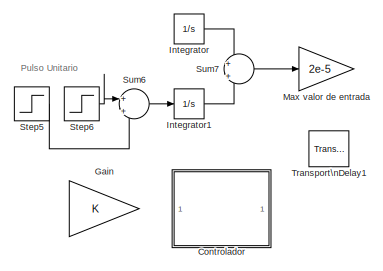
[diagram: root canvas - part 1/2, top right region]
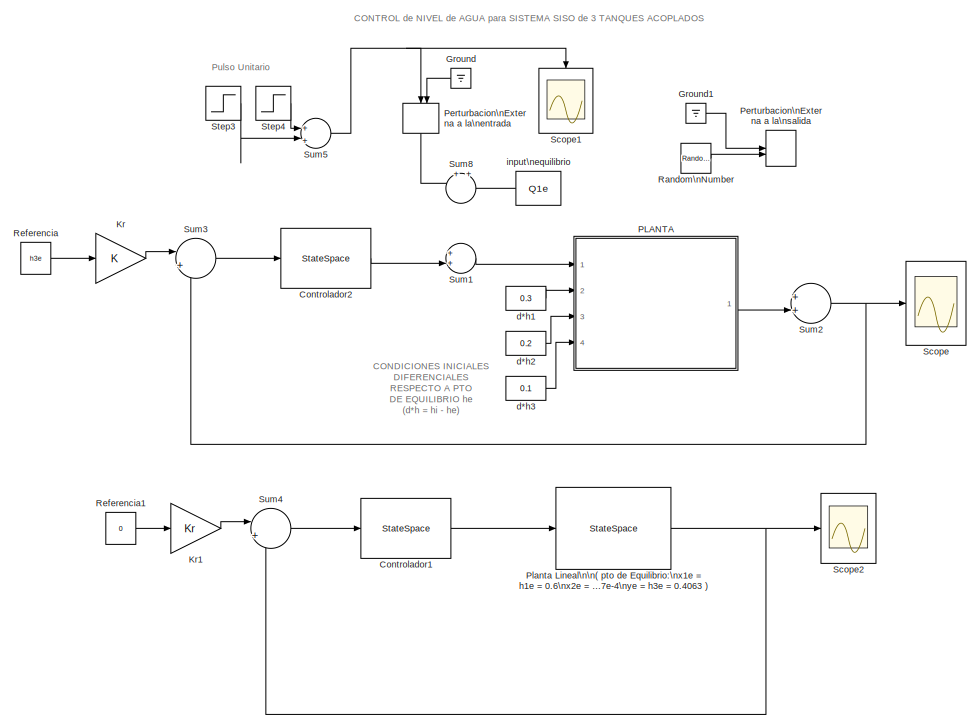
[diagram: root canvas - part 2/2, left side, full height]
MODEL sys3Tanks_v3
KIND model
BLOCK [Constant]  input\nequilibrio
  SID = 208
  Value = Q1e
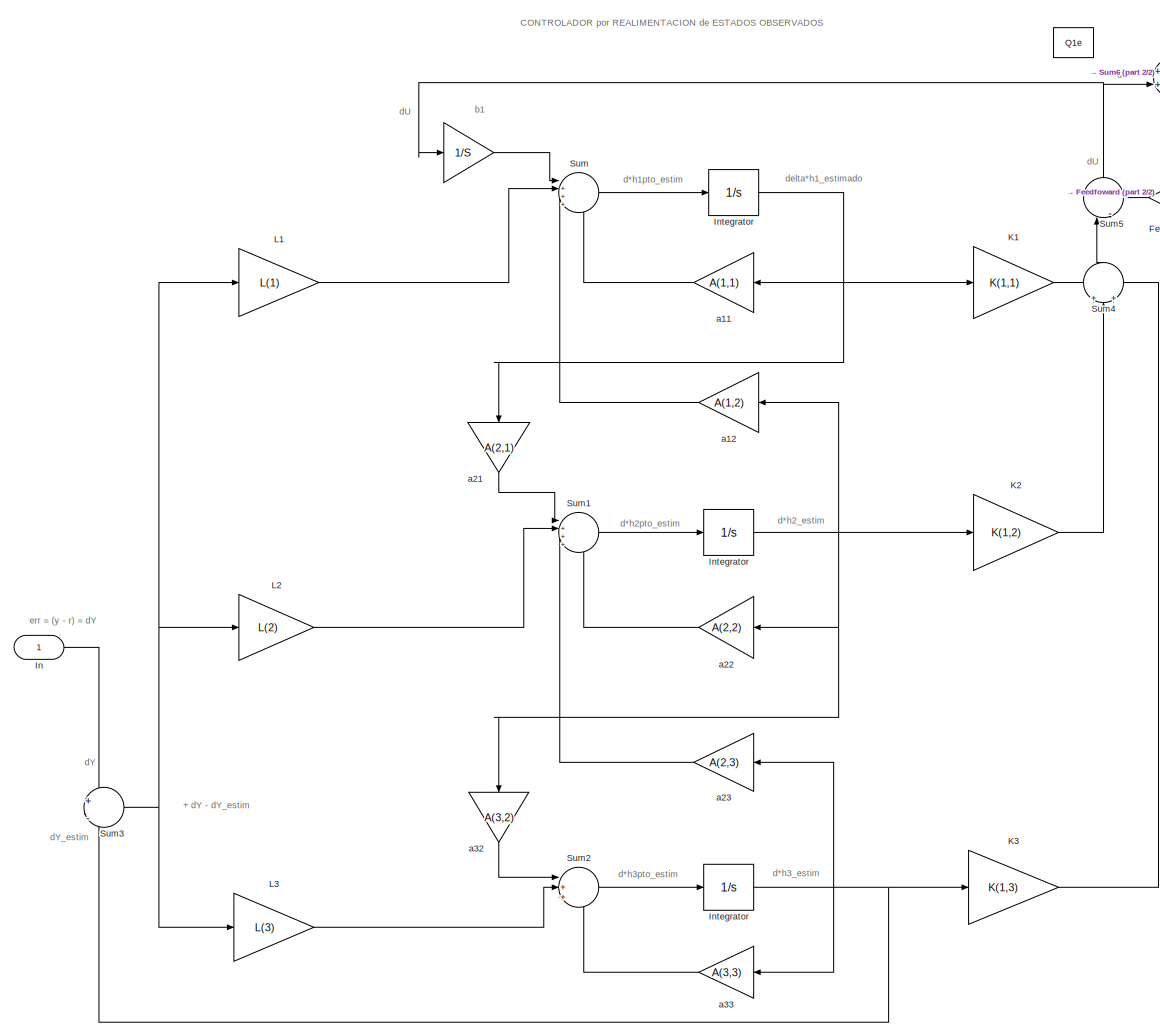
[diagram: Controlador - part 1/2, most of the canvas]
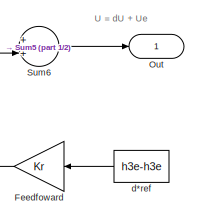
[diagram: Controlador - part 2/2, top right region]
BLOCK [SubSystem] Controlador
  Ports = [1, 1]
  RequestExecContextInheritance = off
  SID = 36
  TreatAsAtomicUnit = on
BLOCK [Constant] Controlador/ 
  SID = 104
  Value = Q1e
BLOCK [Gain] Controlador/   
  Gain = 1/S
  OutDataTypeStr = Inherit: Inherit via internal rule
  ParamDataTypeStr = Inherit: Inherit via internal rule
  SID = 73
  SaturateOnIntegerOverflow = off
BLOCK [Integrator] Controlador/ Integrator 
  Ports = [1, 1]
  SID = 77
BLOCK [Gain] Controlador/Feedfoward
  Gain = Kr
  OutDataTypeStr = Inherit: Inherit via internal rule
  ParamDataTypeStr = Inherit: Inherit via internal rule
  SID = 81
  SaturateOnIntegerOverflow = off
BLOCK [Inport] Controlador/In
  IconDisplay = Port number
  SID = 37
BLOCK [Integrator] Controlador/Integrator
  Ports = [1, 1]
  SID = 75
BLOCK [Integrator] Controlador/Integrator  
  Ports = [1, 1]
  SID = 76
BLOCK [Gain] Controlador/K1
  Gain = K(1,1)
  OutDataTypeStr = Inherit: Inherit via internal rule
  ParamDataTypeStr = Inherit: Inherit via internal rule
  SID = 78
  SaturateOnIntegerOverflow = off
BLOCK [Gain] Controlador/K2
  Gain = K(1,2)
  OutDataTypeStr = Inherit: Inherit via internal rule
  ParamDataTypeStr = Inherit: Inherit via internal rule
  SID = 79
  SaturateOnIntegerOverflow = off
BLOCK [Gain] Controlador/K3
  Gain = K(1,3)
  OutDataTypeStr = Inherit: Inherit via internal rule
  ParamDataTypeStr = Inherit: Inherit via internal rule
  SID = 80
  SaturateOnIntegerOverflow = off
BLOCK [Gain] Controlador/L1
  Gain = L(1)
  OutDataTypeStr = Inherit: Inherit via internal rule
  ParamDataTypeStr = Inherit: Inherit via internal rule
  SID = 82
  SaturateOnIntegerOverflow = off
BLOCK [Gain] Controlador/L2
  Gain = L(2)
  OutDataTypeStr = Inherit: Inherit via internal rule
  ParamDataTypeStr = Inherit: Inherit via internal rule
  SID = 83
  SaturateOnIntegerOverflow = off
BLOCK [Gain] Controlador/L3
  Gain = L(3)
  OutDataTypeStr = Inherit: Inherit via internal rule
  ParamDataTypeStr = Inherit: Inherit via internal rule
  SID = 84
  SaturateOnIntegerOverflow = off
BLOCK [Outport] Controlador/Out
  IconDisplay = Port number
  SID = 65
BLOCK [Sum] Controlador/Sum
  IconShape = round
  InputSameDT = off
  Inputs = |++++
  OutDataTypeStr = Inherit: Inherit via internal rule
  Ports = [4, 1]
  SID = 85
  SaturateOnIntegerOverflow = off
BLOCK [Sum] Controlador/Sum1
  IconShape = round
  InputSameDT = off
  Inputs = |++++
  OutDataTypeStr = Inherit: Inherit via internal rule
  Ports = [4, 1]
  SID = 86
  SaturateOnIntegerOverflow = off
BLOCK [Sum] Controlador/Sum2
  IconShape = round
  InputSameDT = off
  Inputs = |+++
  OutDataTypeStr = Inherit: Inherit via internal rule
  Ports = [3, 1]
  SID = 87
  SaturateOnIntegerOverflow = off
BLOCK [Sum] Controlador/Sum3
  IconShape = round
  InputSameDT = off
  Inputs = +|-
  OutDataTypeStr = Inherit: Inherit via internal rule
  Ports = [2, 1]
  SID = 88
  SaturateOnIntegerOverflow = off
BLOCK [Sum] Controlador/Sum4
  IconShape = round
  InputSameDT = off
  Inputs = +|+|+
  OutDataTypeStr = Inherit: Inherit via internal rule
  Ports = [3, 1]
  SID = 89
  SaturateOnIntegerOverflow = off
BLOCK [Sum] Controlador/Sum5
  IconShape = round
  InputSameDT = off
  Inputs = |-+
  OutDataTypeStr = Inherit: Inherit via internal rule
  Ports = [2, 1]
  SID = 98
  SaturateOnIntegerOverflow = off
BLOCK [Sum] Controlador/Sum6
  IconShape = round
  InputSameDT = off
  Inputs = ++|
  OutDataTypeStr = Inherit: Inherit via internal rule
  Ports = [2, 1]
  SID = 103
  SaturateOnIntegerOverflow = off
BLOCK [Gain] Controlador/a11
  Gain = A(1,1)
  OutDataTypeStr = Inherit: Inherit via internal rule
  ParamDataTypeStr = Inherit: Inherit via internal rule
  SID = 90
  SaturateOnIntegerOverflow = off
BLOCK [Gain] Controlador/a12
  Gain = A(1,2)
  OutDataTypeStr = Inherit: Inherit via internal rule
  ParamDataTypeStr = Inherit: Inherit via internal rule
  SID = 91
  SaturateOnIntegerOverflow = off
BLOCK [Gain] Controlador/a21
  Gain = A(2,1)
  OutDataTypeStr = Inherit: Inherit via internal rule
  ParamDataTypeStr = Inherit: Inherit via internal rule
  SID = 92
  SaturateOnIntegerOverflow = off
BLOCK [Gain] Controlador/a22
  Gain = A(2,2)
  OutDataTypeStr = Inherit: Inherit via internal rule
  ParamDataTypeStr = Inherit: Inherit via internal rule
  SID = 93
  SaturateOnIntegerOverflow = off
BLOCK [Gain] Controlador/a23
  Gain = A(2,3)
  OutDataTypeStr = Inherit: Inherit via internal rule
  ParamDataTypeStr = Inherit: Inherit via internal rule
  SID = 94
  SaturateOnIntegerOverflow = off
BLOCK [Gain] Controlador/a32
  Gain = A(3,2)
  OutDataTypeStr = Inherit: Inherit via internal rule
  ParamDataTypeStr = Inherit: Inherit via internal rule
  SID = 95
  SaturateOnIntegerOverflow = off
BLOCK [Gain] Controlador/a33
  Gain = A(3,3)
  OutDataTypeStr = Inherit: Inherit via internal rule
  ParamDataTypeStr = Inherit: Inherit via internal rule
  SID = 96
  SaturateOnIntegerOverflow = off
BLOCK [Constant] Controlador/d*ref  
  SID = 100
  Value = h3e-h3e
BLOCK [StateSpace] Controlador1
  A = Ac
  B = Bc
  C = Cc
  D = Dc
  Ports = [1, 1]
  SID = 199
  X0 = [0;0;0]
BLOCK [StateSpace] Controlador2
  A = Ac
  B = Bc
  C = Cc
  D = Dc
  Ports = [1, 1]
  SID = 211
  X0 = [0;0;0]
BLOCK [Gain] Gain
  OutDataTypeStr = Inherit: Inherit via internal rule
  ParamDataTypeStr = Inherit: Inherit via internal rule
  SID = 197
  SaturateOnIntegerOverflow = off
BLOCK [Ground] Ground
  SID = 145
BLOCK [Ground] Ground1
  SID = 146
BLOCK [Integrator] Integrator
  Ports = [1, 1]
  SID = 187
BLOCK [Integrator] Integrator1
  Ports = [1, 1]
  SID = 188
BLOCK [Gain] Kr
  OutDataTypeStr = Inherit: Inherit via internal rule
  ParamDataTypeStr = Inherit: Inherit via internal rule
  SID = 206
  SaturateOnIntegerOverflow = off
BLOCK [Gain] Kr1
  Gain = Kr
  OutDataTypeStr = Inherit: Inherit via internal rule
  ParamDataTypeStr = Inherit: Inherit via internal rule
  SID = 207
  SaturateOnIntegerOverflow = off
BLOCK [Gain] Max valor de entrada
  Gain = 2e-5
  OutDataTypeStr = Inherit: Inherit via internal rule
  ParamDataTypeStr = Inherit: Inherit via internal rule
  SID = 173
  SaturateOnIntegerOverflow = off
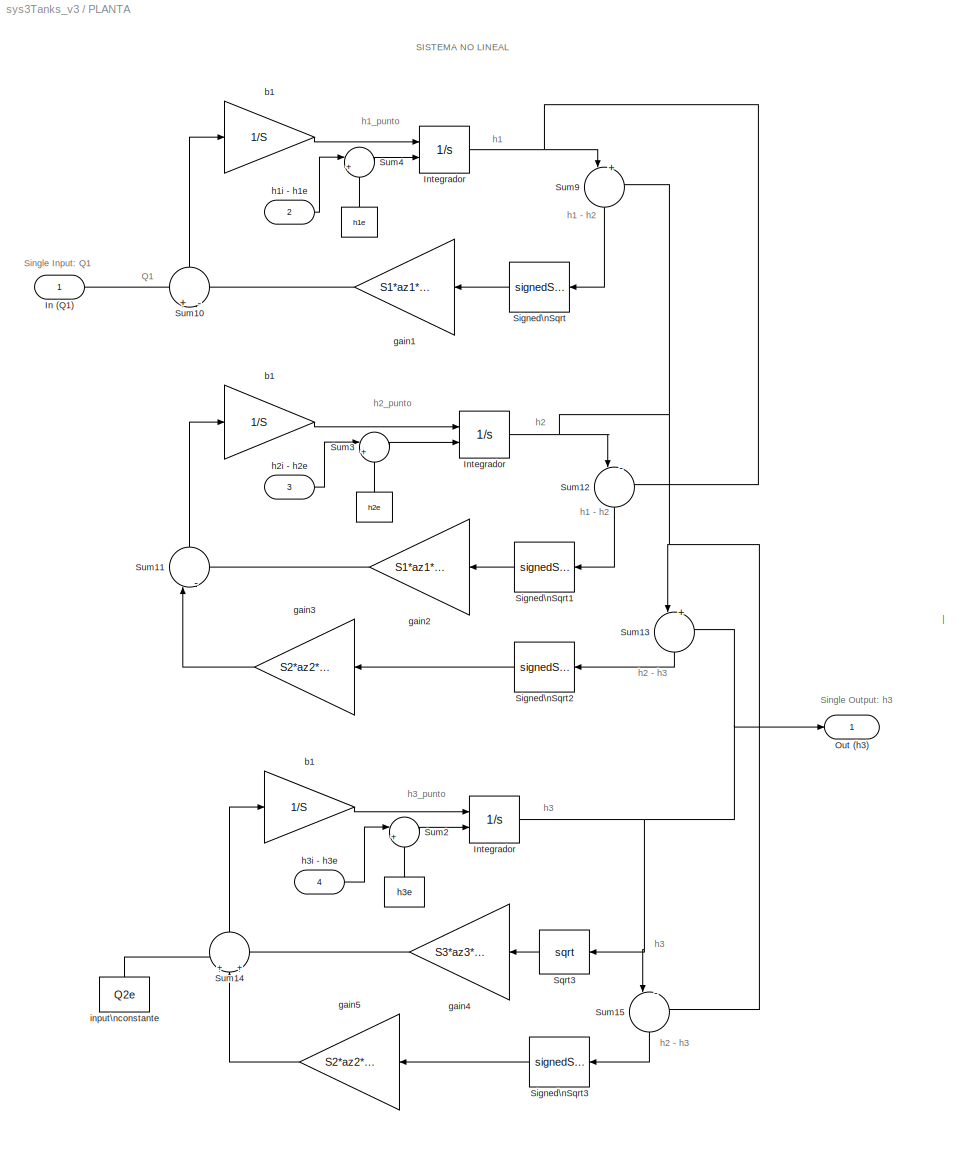
BLOCK [SubSystem] PLANTA
  Ports = [4, 1]
  RequestExecContextInheritance = off
  SID = 1
  TreatAsAtomicUnit = on
BLOCK [Constant] PLANTA/ 
  SID = 138
  Value = h1e
BLOCK [Constant] PLANTA/   
  SID = 34
  Value = h2e
BLOCK [Constant] PLANTA/     
  SID = 35
  Value = h3e
BLOCK [Integrator] PLANTA/ Integrador  
  AbsoluteTolerance = 1
  InitialCondition = 0.406
  InitialConditionSource = external
  LimitOutput = on
  LowerSaturationLimit = 0
  Ports = [2, 1]
  SID = 12
  UpperSaturationLimit = 1e2
BLOCK [Gain] PLANTA/ b1 
  Gain = 1/S
  OutDataTypeStr = Inherit: Inherit via internal rule
  ParamDataTypeStr = Inherit: Inherit via internal rule
  SID = 9
  SaturateOnIntegerOverflow = off
BLOCK [Constant] PLANTA/ input\nconstante
  SID = 14
  Value = Q2e
BLOCK [Inport] PLANTA/In (Q1)
  IconDisplay = Port number
  SID = 2
BLOCK [Integrator] PLANTA/Integrador
  InitialCondition = 0.5
  InitialConditionSource = external
  Ports = [2, 1]
  SID = 11
BLOCK [Integrator] PLANTA/Integrador 
  InitialCondition = 0.6
  InitialConditionSource = external
  Ports = [2, 1]
  SID = 10
BLOCK [Outport] PLANTA/Out (h3)
  IconDisplay = Port number
  SID = 3
BLOCK [Sqrt] PLANTA/Signed\nSqrt
  Operator = signedSqrt
  SID = 20
BLOCK [Sqrt] PLANTA/Signed\nSqrt1
  Operator = signedSqrt
  SID = 21
BLOCK [Sqrt] PLANTA/Signed\nSqrt2
  Operator = signedSqrt
  SID = 22
BLOCK [Sqrt] PLANTA/Signed\nSqrt3
  Operator = signedSqrt
  SID = 23
BLOCK [Sqrt] PLANTA/Sqrt3
  OutputSignalType = real
  SID = 24
BLOCK [Sum] PLANTA/Sum10
  IconShape = round
  InputSameDT = off
  Inputs = +|-
  OutDataTypeStr = Inherit: Inherit via internal rule
  Ports = [2, 1]
  SID = 25
  SaturateOnIntegerOverflow = off
BLOCK [Sum] PLANTA/Sum11
  IconShape = round
  InputSameDT = off
  Inputs = |-+
  OutDataTypeStr = Inherit: Inherit via internal rule
  Ports = [2, 1]
  SID = 26
  SaturateOnIntegerOverflow = off
BLOCK [Sum] PLANTA/Sum12
  IconShape = round
  InputSameDT = off
  Inputs = |-+
  OutDataTypeStr = Inherit: Inherit via internal rule
  Ports = [2, 1]
  SID = 27
  SaturateOnIntegerOverflow = off
BLOCK [Sum] PLANTA/Sum13
  IconShape = round
  InputSameDT = off
  Inputs = |+-
  OutDataTypeStr = Inherit: Inherit via internal rule
  Ports = [2, 1]
  SID = 28
  SaturateOnIntegerOverflow = off
BLOCK [Sum] PLANTA/Sum14
  IconShape = round
  InputSameDT = off
  Inputs = +|+|-
  OutDataTypeStr = Inherit: Inherit via internal rule
  Ports = [3, 1]
  SID = 29
  SaturateOnIntegerOverflow = off
BLOCK [Sum] PLANTA/Sum15
  IconShape = round
  InputSameDT = off
  Inputs = |-+
  OutDataTypeStr = Inherit: Inherit via internal rule
  Ports = [2, 1]
  SID = 30
  SaturateOnIntegerOverflow = off
BLOCK [Sum] PLANTA/Sum2
  IconShape = round
  InputSameDT = off
  Inputs = |++
  OutDataTypeStr = Inherit: Inherit via internal rule
  Ports = [2, 1]
  SID = 130
  SaturateOnIntegerOverflow = off
BLOCK [Sum] PLANTA/Sum3
  IconShape = round
  InputSameDT = off
  Inputs = |++
  OutDataTypeStr = Inherit: Inherit via internal rule
  Ports = [2, 1]
  SID = 134
  SaturateOnIntegerOverflow = off
BLOCK [Sum] PLANTA/Sum4
  IconShape = round
  InputSameDT = off
  Inputs = |++
  OutDataTypeStr = Inherit: Inherit via internal rule
  Ports = [2, 1]
  SID = 137
  SaturateOnIntegerOverflow = off
BLOCK [Sum] PLANTA/Sum9
  IconShape = round
  InputSameDT = off
  Inputs = |+-
  OutDataTypeStr = Inherit: Inherit via internal rule
  Ports = [2, 1]
  SID = 32
  SaturateOnIntegerOverflow = off
BLOCK [Gain] PLANTA/b1
  Gain = 1/S
  OutDataTypeStr = Inherit: Inherit via internal rule
  ParamDataTypeStr = Inherit: Inherit via internal rule
  SID = 7
  SaturateOnIntegerOverflow = off
BLOCK [Gain] PLANTA/b1   
  Gain = 1/S
  OutDataTypeStr = Inherit: Inherit via internal rule
  ParamDataTypeStr = Inherit: Inherit via internal rule
  SID = 8
  SaturateOnIntegerOverflow = off
BLOCK [Gain] PLANTA/gain1
  Gain = S1*az1*sqrt(2*g)
  OutDataTypeStr = Inherit: Inherit via internal rule
  ParamDataTypeStr = Inherit: Inherit via internal rule
  SID = 15
  SaturateOnIntegerOverflow = off
BLOCK [Gain] PLANTA/gain2
  Gain = S1*az1*sqrt(2*g)
  OutDataTypeStr = Inherit: Inherit via internal rule
  ParamDataTypeStr = Inherit: Inherit via internal rule
  SID = 16
  SaturateOnIntegerOverflow = off
BLOCK [Gain] PLANTA/gain3
  Gain = S2*az2*sqrt(2*g)
  OutDataTypeStr = Inherit: Inherit via internal rule
  ParamDataTypeStr = Inherit: Inherit via internal rule
  SID = 17
  SaturateOnIntegerOverflow = off
BLOCK [Gain] PLANTA/gain4
  Gain = S3*az3*sqrt(2*g)
  OutDataTypeStr = Inherit: Inherit via internal rule
  ParamDataTypeStr = Inherit: Inherit via internal rule
  SID = 19
  SaturateOnIntegerOverflow = off
BLOCK [Gain] PLANTA/gain5
  Gain = S2*az2*sqrt(2*g)
  OutDataTypeStr = Inherit: Inherit via internal rule
  ParamDataTypeStr = Inherit: Inherit via internal rule
  SID = 18
  SaturateOnIntegerOverflow = off
BLOCK [Inport] PLANTA/h1i - h1e
  IconDisplay = Port number
  Port = 2
  SID = 135
BLOCK [Inport] PLANTA/h2i - h2e
  IconDisplay = Port number
  Port = 3
  SID = 133
BLOCK [Inport] PLANTA/h3i - h3e
  IconDisplay = Port number
  Port = 4
  SID = 132
BLOCK [ManualSwitch] Perturbacion\nExterna a la\nentrada
  CurrentSetting = 0
  SID = 118
BLOCK [ManualSwitch] Perturbacion\nExterna a la\nsalida
  SID = 117
BLOCK [StateSpace] Planta Lineal\n\n( pto de Equilibrio:\nx1e = h1e = 0.6\nx2e = h2e = 0.5\nx3e = h3e = 0.4063\nue = Q1e = 0.35787e-4\nye = h3e = 0.4063 )
  A = A
  B = B
  C = C
  D = D
  Ports = [1, 1]
  SID = 200
  X0 = [1.2; 0.9; 0.1]
BLOCK [RandomNumber] Random\nNumber
  SID = 196
  Variance = 1e-6
BLOCK [Constant] Referencia
  SID = 102
  Value = h3e
BLOCK [Constant] Referencia1
  SID = 201
  Value = 0
BLOCK [Scope] Scope
  DataFormat = StructureWithTime
  Floating = off
  LimitDataPoints = off
  NumInputPorts = 1
  Ports = [1]
  SID = 106
  SampleTime = 0
  TimeRange = 14.3
  YMax = 0.775
  YMin = 0.5
  ZoomMode = yonly
BLOCK [Scope] Scope1
  DataFormat = StructureWithTime
  Floating = off
  LimitDataPoints = off
  NumInputPorts = 1
  Ports = [1]
  SID = 162
  SampleTime = 0
  SaveName = ScopeData1
  TimeRange = 300
  YMax = 0.47
  YMin = 0.38
  ZoomMode = yonly
BLOCK [Scope] Scope2
  DataFormat = StructureWithTime
  Floating = off
  LimitDataPoints = off
  NumInputPorts = 1
  Ports = [1]
  SID = 203
  SampleTime = 0
  SaveName = ScopeData2
  TimeRange = 4.5
  YMax = 0.01975
  YMin = 0.01425
  ZoomMode = yonly
BLOCK [Step] Step3
  After = 0.5
  Before = -0.5
  SID = 181
  SampleTime = 0
BLOCK [Step] Step4
  After = -0.5
  Before = 0.5
  SID = 182
  SampleTime = 0
  Time = 1.5
BLOCK [Step] Step5
  After = -0.5
  Before = 0.5
  SID = 184
  SampleTime = 0
  Time = 2
BLOCK [Step] Step6
  After = 0.5
  Before = -0.5
  SID = 185
  SampleTime = 0
  Time = 2.5
BLOCK [Sum] Sum1
  IconShape = round
  InputSameDT = off
  Inputs = ++|
  OutDataTypeStr = Inherit: Inherit via internal rule
  Ports = [2, 1]
  SID = 69
  SaturateOnIntegerOverflow = off
BLOCK [Sum] Sum2
  IconShape = round
  InputSameDT = off
  Inputs = ++|
  OutDataTypeStr = Inherit: Inherit via internal rule
  Ports = [2, 1]
  SID = 71
  SaturateOnIntegerOverflow = off
BLOCK [Sum] Sum3
  IconShape = round
  InputSameDT = off
  Inputs = |+-
  OutDataTypeStr = Inherit: Inherit via internal rule
  Ports = [2, 1]
  SID = 101
  SaturateOnIntegerOverflow = off
BLOCK [Sum] Sum4
  IconShape = round
  InputSameDT = off
  Inputs = |+-
  OutDataTypeStr = Inherit: Inherit via internal rule
  Ports = [2, 1]
  SID = 202
  SaturateOnIntegerOverflow = off
BLOCK [Sum] Sum5
  IconShape = round
  InputSameDT = off
  Inputs = +|+
  OutDataTypeStr = Inherit: Inherit via internal rule
  Ports = [2, 1]
  SID = 183
  SaturateOnIntegerOverflow = off
BLOCK [Sum] Sum6
  IconShape = round
  InputSameDT = off
  Inputs = +|+
  OutDataTypeStr = Inherit: Inherit via internal rule
  Ports = [2, 1]
  SID = 186
  SaturateOnIntegerOverflow = off
BLOCK [Sum] Sum7
  IconShape = round
  InputSameDT = off
  Inputs = +|+
  OutDataTypeStr = Inherit: Inherit via internal rule
  Ports = [2, 1]
  SID = 189
  SaturateOnIntegerOverflow = off
BLOCK [Sum] Sum8
  IconShape = round
  InputSameDT = off
  Inputs = +|+
  OutDataTypeStr = Inherit: Inherit via internal rule
  Ports = [2, 1]
  SID = 209
  SaturateOnIntegerOverflow = off
BLOCK [TransportDelay] Transport\nDelay1
  DelayTime = 3
  Ports = [1, 1]
  SID = 198
BLOCK [Constant] d*h1
  SID = 139
  Value = 0.3
BLOCK [Constant] d*h2
  SID = 141
  Value = 0.2
BLOCK [Constant] d*h3
  SID = 142
  Value = 0.1
ANNOTATION (root): CONDICIONES INICIALES\nDIFERENCIALES\nRESPECTO A PTO\nDE EQUILIBRIO he\n(d*h = hi - he)
ANNOTATION (root): CONTROL de NIVEL de AGUA para SISTEMA SISO de 3 TANQUES ACOPLADOS
ANNOTATION (root): Pulso Unitario
ANNOTATION Controlador: + dY - dY_estim
ANNOTATION Controlador: CONTROLADOR por REALIMENTACION de ESTADOS OBSERVADOS
ANNOTATION Controlador: U = dU + Ue
ANNOTATION Controlador: b1
ANNOTATION Controlador: d*h1pto_estim
ANNOTATION Controlador: d*h2_estim
ANNOTATION Controlador: d*h2pto_estim
ANNOTATION Controlador: d*h3_estim
ANNOTATION Controlador: d*h3pto_estim
ANNOTATION Controlador: dU
ANNOTATION Controlador: dY
ANNOTATION Controlador: dY_estim
ANNOTATION Controlador: delta*h1_estimado
ANNOTATION Controlador: err = (y - r) = dY
ANNOTATION PLANTA: |
ANNOTATION PLANTA: Q1
ANNOTATION PLANTA: SISTEMA NO LINEAL
ANNOTATION PLANTA: Single Input: Q1
ANNOTATION PLANTA: Single Output: h3
ANNOTATION PLANTA: h1
ANNOTATION PLANTA: h1 - h2
ANNOTATION PLANTA: h1_punto
ANNOTATION PLANTA: h2
ANNOTATION PLANTA: h2 - h3
ANNOTATION PLANTA: h2_punto
ANNOTATION PLANTA: h3
ANNOTATION PLANTA: h3_punto
LINE  input\nequilibrio:1 -> Sum8:2
LINE Controlador/   :1 -> Controlador/Sum:1
NET Controlador/ Integrator :1 -> Controlador/K3:1, Controlador/Sum3:2, Controlador/a23:1, Controlador/a33:1
LINE Controlador/Feedfoward:1 -> Controlador/Sum5:2
LINE Controlador/In:1 -> Controlador/Sum3:1
NET Controlador/Integrator  :1 -> Controlador/K2:1, Controlador/a12:1, Controlador/a22:1, Controlador/a32:1
NET Controlador/Integrator:1 -> Controlador/K1:1, Controlador/a11:1, Controlador/a21:1
LINE Controlador/K1:1 -> Controlador/Sum4:1
LINE Controlador/K2:1 -> Controlador/Sum4:2
LINE Controlador/K3:1 -> Controlador/Sum4:3
LINE Controlador/L1:1 -> Controlador/Sum:2
LINE Controlador/L2:1 -> Controlador/Sum1:2
LINE Controlador/L3:1 -> Controlador/Sum2:2
LINE Controlador/Sum1:1 -> Controlador/Integrator  :1
LINE Controlador/Sum2:1 -> Controlador/ Integrator :1
NET Controlador/Sum3:1 -> Controlador/L1:1, Controlador/L2:1, Controlador/L3:1
LINE Controlador/Sum4:1 -> Controlador/Sum5:1
NET Controlador/Sum5:1 -> Controlador/   :1, Controlador/Sum6:2
LINE Controlador/Sum6:1 -> Controlador/Out:1
LINE Controlador/Sum:1 -> Controlador/Integrator:1
LINE Controlador/a11:1 -> Controlador/Sum:4
LINE Controlador/a12:1 -> Controlador/Sum:3
LINE Controlador/a21:1 -> Controlador/Sum1:1
LINE Controlador/a22:1 -> Controlador/Sum1:4
LINE Controlador/a23:1 -> Controlador/Sum1:3
LINE Controlador/a32:1 -> Controlador/Sum2:1
LINE Controlador/a33:1 -> Controlador/Sum2:3
LINE Controlador/d*ref  :1 -> Controlador/Feedfoward:1
LINE Controlador1:1 -> Planta Lineal\n\n( pto de Equilibrio:\nx1e = h1e = 0.6\nx2e = h2e = 0.5\nx3e = h3e = 0.4063\nue = Q1e = 0.35787e-4\nye = h3e = 0.4063 ):1
LINE Controlador2:1 -> Sum1:2
LINE Ground1:1 -> Perturbacion\nExterna a la\nsalida:1
LINE Ground:1 -> Perturbacion\nExterna a la\nentrada:2
LINE Integrator1:1 -> Sum7:2
LINE Integrator:1 -> Sum7:1
LINE Kr1:1 -> Sum4:1
LINE Kr:1 -> Sum3:1
LINE PLANTA/     :1 -> PLANTA/Sum2:2
LINE PLANTA/   :1 -> PLANTA/Sum3:2
LINE PLANTA/ :1 -> PLANTA/Sum4:2
NET PLANTA/ Integrador  :1 -> PLANTA/Out (h3):1, PLANTA/Sqrt3:1, PLANTA/Sum13:2, PLANTA/Sum15:1
LINE PLANTA/ b1 :1 -> PLANTA/ Integrador  :1
LINE PLANTA/ input\nconstante:1 -> PLANTA/Sum14:1
LINE PLANTA/In (Q1):1 -> PLANTA/Sum10:1
NET PLANTA/Integrador :1 -> PLANTA/Sum12:2, PLANTA/Sum9:1
NET PLANTA/Integrador:1 -> PLANTA/Sum12:1, PLANTA/Sum13:1, PLANTA/Sum15:2, PLANTA/Sum9:2
LINE PLANTA/Signed\nSqrt1:1 -> PLANTA/gain2:1
LINE PLANTA/Signed\nSqrt2:1 -> PLANTA/gain3:1
LINE PLANTA/Signed\nSqrt3:1 -> PLANTA/gain5:1
LINE PLANTA/Signed\nSqrt:1 -> PLANTA/gain1:1
LINE PLANTA/Sqrt3:1 -> PLANTA/gain4:1
LINE PLANTA/Sum10:1 -> PLANTA/b1:1
LINE PLANTA/Sum11:1 -> PLANTA/b1   :1
LINE PLANTA/Sum12:1 -> PLANTA/Signed\nSqrt1:1
LINE PLANTA/Sum13:1 -> PLANTA/Signed\nSqrt2:1
LINE PLANTA/Sum14:1 -> PLANTA/ b1 :1
LINE PLANTA/Sum15:1 -> PLANTA/Signed\nSqrt3:1
LINE PLANTA/Sum2:1 -> PLANTA/ Integrador  :2
LINE PLANTA/Sum3:1 -> PLANTA/Integrador:2
LINE PLANTA/Sum4:1 -> PLANTA/Integrador :2
LINE PLANTA/Sum9:1 -> PLANTA/Signed\nSqrt:1
LINE PLANTA/b1   :1 -> PLANTA/Integrador:1
LINE PLANTA/b1:1 -> PLANTA/Integrador :1
LINE PLANTA/gain1:1 -> PLANTA/Sum10:2
LINE PLANTA/gain2:1 -> PLANTA/Sum11:2
LINE PLANTA/gain3:1 -> PLANTA/Sum11:1
LINE PLANTA/gain4:1 -> PLANTA/Sum14:3
LINE PLANTA/gain5:1 -> PLANTA/Sum14:2
LINE PLANTA/h1i - h1e:1 -> PLANTA/Sum4:1
LINE PLANTA/h2i - h2e:1 -> PLANTA/Sum3:1
LINE PLANTA/h3i - h3e:1 -> PLANTA/Sum2:1
LINE PLANTA:1 -> Sum2:2
LINE Perturbacion\nExterna a la\nentrada:1 -> Sum8:1
NET Planta Lineal\n\n( pto de Equilibrio:\nx1e = h1e = 0.6\nx2e = h2e = 0.5\nx3e = h3e = 0.4063\nue = Q1e = 0.35787e-4\nye = h3e = 0.4063 ):1 -> Scope2:1, Sum4:2
LINE Random\nNumber:1 -> Perturbacion\nExterna a la\nsalida:2
LINE Referencia1:1 -> Kr1:1
LINE Referencia:1 -> Kr:1
LINE Step3:1 -> Sum5:2
LINE Step4:1 -> Sum5:1
LINE Step5:1 -> Sum6:2
LINE Step6:1 -> Sum6:1
LINE Sum1:1 -> PLANTA:1
NET Sum2:1 -> Scope:1, Sum3:2
LINE Sum3:1 -> Controlador2:1
LINE Sum4:1 -> Controlador1:1
NET Sum5:1 -> Perturbacion\nExterna a la\nentrada:1, Scope1:1
LINE Sum6:1 -> Integrator1:1
LINE Sum7:1 -> Max valor de entrada:1
LINE d*h1:1 -> PLANTA:2
LINE d*h2:1 -> PLANTA:3
LINE d*h3:1 -> PLANTA:4
note: NET lines group one-source signal fan-out (src -> all destinations, sorted); 1:1 wires keep LINE
